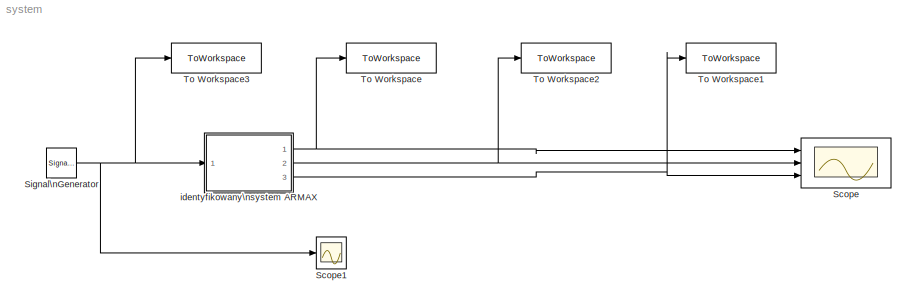
MODEL system
KIND model
BLOCK [Scope] Scope
  Floating = off
  NumInputPorts = 3
  Ports = [3]
  SID = 24
  ScopeSpecificationString = Simulink.scopes.TimeScopeBlockCfg('CurrentConfiguration', extmgr.ConfigurationSet(extmgr.Configuration('Core','General UI',true),extmgr.Configuration('Core','Source UI',true),extmgr.Configuration('Sources','WiredSimulink',true,'DataLoggingVariableName','ScopeData1'),extmgr.Configuration('Visuals','Time Domain',true,'SerializedDisplays',{struct('MinYLimReal','-5.61841','MaxYLimReal','5.72748','YLab...<+1452ch>
BLOCK [Scope] Scope1
  Floating = off
  NumInputPorts = 1
  Ports = [1]
  SID = 31
  ScopeSpecificationString = Simulink.scopes.TimeScopeBlockCfg('CurrentConfiguration', extmgr.ConfigurationSet(extmgr.Configuration('Core','General UI',true),extmgr.Configuration('Core','Source UI',true),extmgr.Configuration('Sources','WiredSimulink',true,'DataLoggingVariableName','ScopeData2'),extmgr.Configuration('Visuals','Time Domain',true,'SerializedDisplays',{struct('MinYLimReal','-1.25','MaxYLimReal','1.25','YLabelReal...<+1357ch>
BLOCK [SignalGenerator] Signal\nGenerator
  Frequency = f
  Ports = [0, 1]
  SID = 30
  WaveForm = square
BLOCK [ToWorkspace] To Workspace
  FixptAsFi = on
  MaxDataPoints = inf
  Ports = [1]
  SID = 32
  SampleTime = -1
  SaveFormat = Timeseries
  VariableName = b2o
BLOCK [ToWorkspace] To Workspace1
  FixptAsFi = on
  MaxDataPoints = inf
  Ports = [1]
  SID = 33
  SampleTime = -1
  SaveFormat = Timeseries
  VariableName = y
BLOCK [ToWorkspace] To Workspace2
  FixptAsFi = on
  MaxDataPoints = inf
  Ports = [1]
  SID = 34
  SampleTime = -1
  SaveFormat = Timeseries
  VariableName = yo
BLOCK [ToWorkspace] To Workspace3
  FixptAsFi = on
  MaxDataPoints = inf
  Ports = [1]
  SID = 35
  SampleTime = -1
  SaveFormat = Timeseries
  VariableName = u
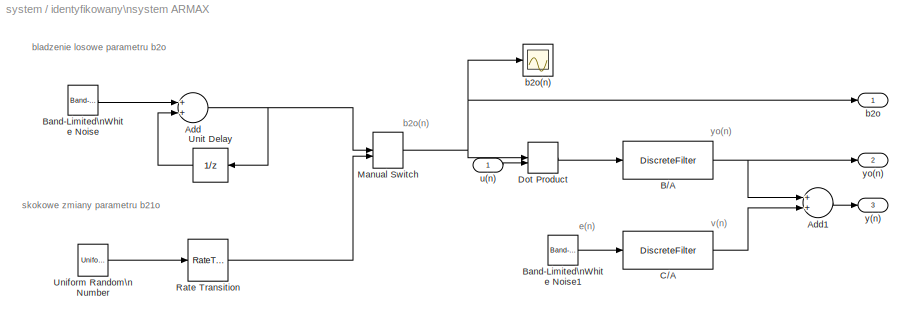
BLOCK [SubSystem] identyfikowany\nsystem ARMAX
  Ports = [1, 3]
  RequestExecContextInheritance = off
  SID = 1
BLOCK [Sum] identyfikowany\nsystem ARMAX/Add
  InputSameDT = off
  OutDataTypeStr = Inherit: Inherit via internal rule
  Ports = [2, 1]
  SID = 3
  SaturateOnIntegerOverflow = off
BLOCK [Sum] identyfikowany\nsystem ARMAX/Add1
  InputSameDT = off
  OutDataTypeStr = Inherit: Inherit via internal rule
  Ports = [2, 1]
  SID = 4
  SaturateOnIntegerOverflow = off
BLOCK [DiscreteFilter] identyfikowany\nsystem ARMAX/B//A
  Denominator = [1 -0.8 -0.1]
  InputPortMap = u0
  Numerator = [0 0 1]
  Ports = [1, 1]
  SID = 5
  SampleTime = Tp
BLOCK [Reference] identyfikowany\nsystem ARMAX/Band-Limited\nWhite Noise  REF=simulink/Sources/Band-Limited\nWhite Noise
  Cov = [0.00001*Tp]
  Ports = [0, 1]
  SID = 6
  SourceBlock = simulink/Sources/Band-Limited\nWhite Noise
  SourceProductBaseCode = SL
  SourceProductName = Simulink
  SourceType = Band-Limited White Noise.
  Ts = Tp
  VectorParams1D = on
  seed = [23341]
BLOCK [Reference] identyfikowany\nsystem ARMAX/Band-Limited\nWhite Noise1  REF=simulink/Sources/Band-Limited\nWhite Noise
  Cov = [0.001*Tp]
  Ports = [0, 1]
  SID = 7
  SourceBlock = simulink/Sources/Band-Limited\nWhite Noise
  SourceProductBaseCode = SL
  SourceProductName = Simulink
  SourceType = Band-Limited White Noise.
  Ts = Tp
  VectorParams1D = on
  seed = [23341]
BLOCK [DiscreteFilter] identyfikowany\nsystem ARMAX/C//A
  Denominator = [1 -0.8 -0.1]
  InputPortMap = u0
  Numerator = [1 c1o]
  Ports = [1, 1]
  SID = 8
  SampleTime = Tp
BLOCK [DotProduct] identyfikowany\nsystem ARMAX/Dot Product
  OutDataTypeStr = Inherit: Inherit via internal rule
  SID = 9
BLOCK [ManualSwitch] identyfikowany\nsystem ARMAX/Manual Switch
  SID = 10
BLOCK [RateTransition] identyfikowany\nsystem ARMAX/Rate Transition
  InitialCondition = 0.5
  OutPortSampleTime = Tp
  SID = 11
BLOCK [UniformRandomNumber] identyfikowany\nsystem ARMAX/Uniform Random\nNumber
  Maximum = 0.8
  Minimum = 0.1
  SID = 12
  SampleTime = Td
  Seed = 2
BLOCK [UnitDelay] identyfikowany\nsystem ARMAX/Unit Delay
  SID = 13
  SampleTime = Tp
BLOCK [Outport] identyfikowany\nsystem ARMAX/b2o
  IconDisplay = Port number
  SID = 15
BLOCK [Scope] identyfikowany\nsystem ARMAX/b2o(n)
  Floating = off
  NumInputPorts = 1
  Ports = [1]
  SID = 14
  ScopeSpecificationString = Simulink.scopes.TimeScopeBlockCfg('CurrentConfiguration', extmgr.ConfigurationSet(extmgr.Configuration('Core','General UI',true),extmgr.Configuration('Core','Source UI',true),extmgr.Configuration('Sources','WiredSimulink',true,'DataLoggingSaveFormat','StructureWithTime','DataLoggingLimitDataPoints',true,'DataLoggingDecimation','1','DataLoggingDecimateData',true),extmgr.Configuration('Visuals','Tim...<+1647ch>
BLOCK [Inport] identyfikowany\nsystem ARMAX/u(n)
  IconDisplay = Port number
  SID = 2
BLOCK [Outport] identyfikowany\nsystem ARMAX/y(n)
  IconDisplay = Port number
  Port = 3
  SID = 17
BLOCK [Outport] identyfikowany\nsystem ARMAX/yo(n)
  IconDisplay = Port number
  Port = 2
  SID = 16
ANNOTATION identyfikowany\nsystem ARMAX: b2o(n)
ANNOTATION identyfikowany\nsystem ARMAX: bladzenie losowe parametru b2o
ANNOTATION identyfikowany\nsystem ARMAX: e(n)
ANNOTATION identyfikowany\nsystem ARMAX: skokowe zmiany parametru b21o
ANNOTATION identyfikowany\nsystem ARMAX: v(n)
ANNOTATION identyfikowany\nsystem ARMAX: yo(n)
NET Signal\nGenerator:1 -> Scope1:1, To Workspace3:1, identyfikowany\nsystem ARMAX:1
LINE identyfikowany\nsystem ARMAX/Add1:1 -> identyfikowany\nsystem ARMAX/y(n):1
NET identyfikowany\nsystem ARMAX/Add:1 -> identyfikowany\nsystem ARMAX/Manual Switch:1, identyfikowany\nsystem ARMAX/Unit Delay:1
NET identyfikowany\nsystem ARMAX/B//A:1 -> identyfikowany\nsystem ARMAX/Add1:1, identyfikowany\nsystem ARMAX/yo(n):1
LINE identyfikowany\nsystem ARMAX/Band-Limited\nWhite Noise1:1 -> identyfikowany\nsystem ARMAX/C//A:1
LINE identyfikowany\nsystem ARMAX/Band-Limited\nWhite Noise:1 -> identyfikowany\nsystem ARMAX/Add:1
LINE identyfikowany\nsystem ARMAX/C//A:1 -> identyfikowany\nsystem ARMAX/Add1:2
LINE identyfikowany\nsystem ARMAX/Dot Product:1 -> identyfikowany\nsystem ARMAX/B//A:1
NET identyfikowany\nsystem ARMAX/Manual Switch:1 -> identyfikowany\nsystem ARMAX/Dot Product:1, identyfikowany\nsystem ARMAX/b2o(n):1, identyfikowany\nsystem ARMAX/b2o:1
LINE identyfikowany\nsystem ARMAX/Rate Transition:1 -> identyfikowany\nsystem ARMAX/Manual Switch:2
LINE identyfikowany\nsystem ARMAX/Uniform Random\nNumber:1 -> identyfikowany\nsystem ARMAX/Rate Transition:1
LINE identyfikowany\nsystem ARMAX/Unit Delay:1 -> identyfikowany\nsystem ARMAX/Add:2
LINE identyfikowany\nsystem ARMAX/u(n):1 -> identyfikowany\nsystem ARMAX/Dot Product:2
NET identyfikowany\nsystem ARMAX:1 -> Scope:1, To Workspace:1
NET identyfikowany\nsystem ARMAX:2 -> Scope:2, To Workspace2:1
NET identyfikowany\nsystem ARMAX:3 -> Scope:3, To Workspace1:1
note: NET lines group one-source signal fan-out (src -> all destinations, sorted); 1:1 wires keep LINE
